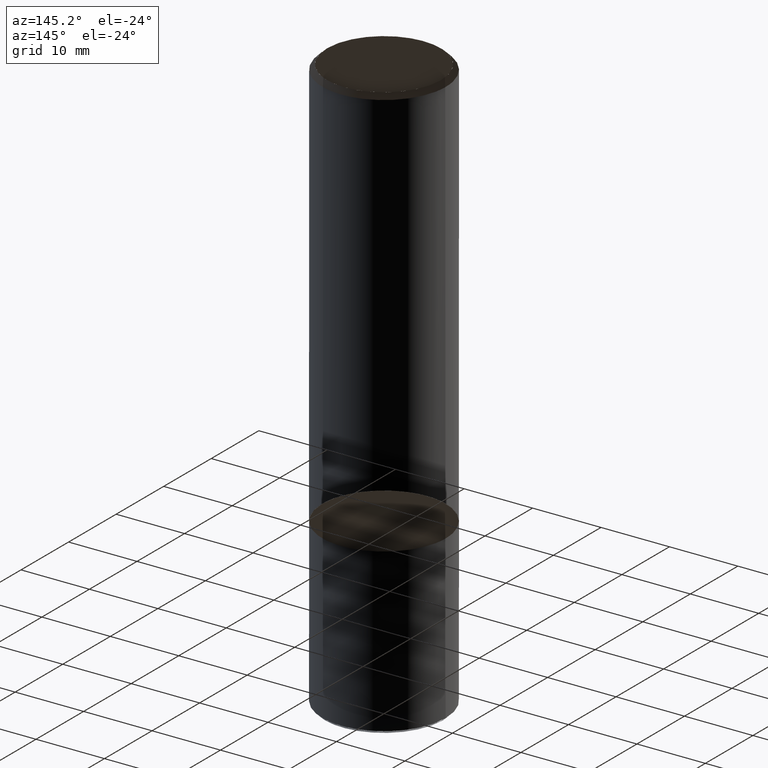
[diagram: clean part render]
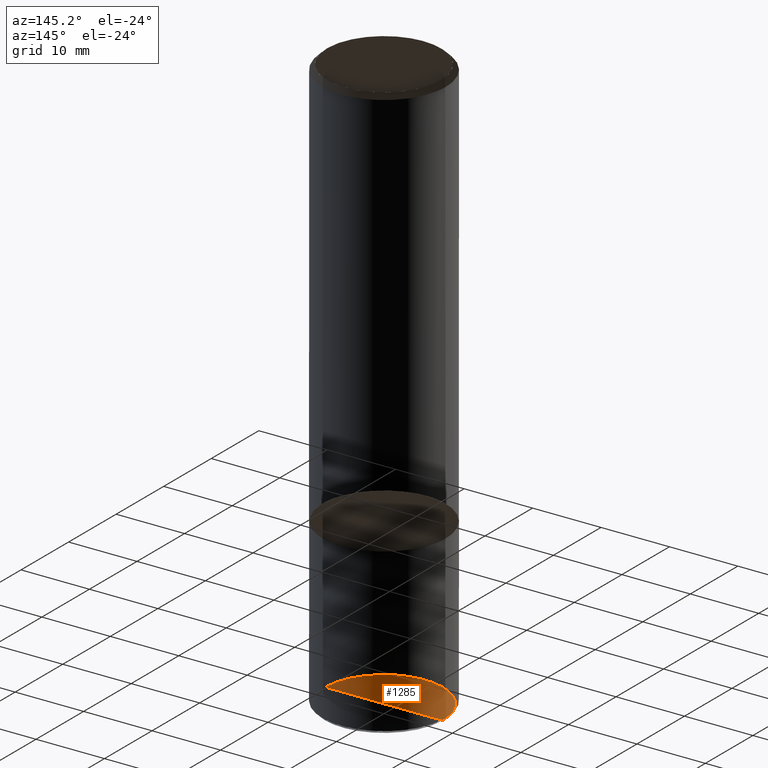
[diagram: same view with one face highlighted and labeled with its STEP entity id]
A machine part, auxiliary view. The second image highlights one B-rep face of the part: STEP entity #1285.
In plain terms, the highlighted face is a freeform B-spline surface patch.
Its self-contained STEP definition (entity closure, byte-faithful):
#1212=CARTESIAN_POINT('',(0.0,0.0,-24.001));
#1213=CARTESIAN_POINT('',(8.6,0.0,-24.001));
#1214=CARTESIAN_POINT('',(8.6,8.6,-24.001));
#1215=CARTESIAN_POINT('',(0.0,8.6,-24.001));
#1216=CARTESIAN_POINT('',(-8.6,8.6,-24.001));
#1217=CARTESIAN_POINT('',(-8.6,0.0,-24.001));
#1270=(
BOUNDED_SURFACE()
B_SPLINE_SURFACE(1,2,(
(#1212,#1212,#1212,#1212,#1212),
(#1213,#1214,#1215,#1216,#1217)
), .UNSPECIFIED.,.F.,.F.,.F.)
B_SPLINE_SURFACE_WITH_KNOTS((2,2),(3,2,3),(
0.0,1.0),(
0.0,0.5,1.0), .UNSPECIFIED.)
GEOMETRIC_REPRESENTATION_ITEM()
RATIONAL_B_SPLINE_SURFACE(((1.0,0.707106781187,1.0,0.707106781187,1.0),
(1.0,0.707106781187,1.0,0.707106781187,1.0)
))
REPRESENTATION_ITEM('')
SURFACE()
);
#1271=(
BOUNDED_CURVE()
B_SPLINE_CURVE(2,(#1213,#1214,#1215,#1216,#1217),.UNSPECIFIED.,.F.,.F.)
B_SPLINE_CURVE_WITH_KNOTS((3,2,3),
(0.0,0.5,1.0),.UNSPECIFIED.)
CURVE()
GEOMETRIC_REPRESENTATION_ITEM()
RATIONAL_B_SPLINE_CURVE((1.0,0.707106781187,1.0,0.707106781187,1.0))
REPRESENTATION_ITEM('')
);
#1272=(
BOUNDED_CURVE()
B_SPLINE_CURVE(1,(#1217,#1212),.UNSPECIFIED.,.F.,.F.)
B_SPLINE_CURVE_WITH_KNOTS((2,2),
(0.0,1.0),.UNSPECIFIED.)
CURVE()
GEOMETRIC_REPRESENTATION_ITEM()
RATIONAL_B_SPLINE_CURVE((1.0,1.0))
REPRESENTATION_ITEM('')
);
#1273=(
BOUNDED_CURVE()
B_SPLINE_CURVE(1,(#1212,#1213),.UNSPECIFIED.,.F.,.F.)
B_SPLINE_CURVE_WITH_KNOTS((2,2),
(0.0,1.0),.UNSPECIFIED.)
CURVE()
GEOMETRIC_REPRESENTATION_ITEM()
RATIONAL_B_SPLINE_CURVE((1.0,1.0))
REPRESENTATION_ITEM('')
);
#1274=VERTEX_POINT('',#1212);
#1275=VERTEX_POINT('',#1213);
#1276=VERTEX_POINT('',#1217);
#1277=EDGE_CURVE('',#1275,#1276,#1271,.T.);
#1278=EDGE_CURVE('',#1276,#1274,#1272,.T.);
#1279=EDGE_CURVE('',#1274,#1275,#1273,.T.);
#1280=ORIENTED_EDGE('',*,*,#1277,.T.);
#1281=ORIENTED_EDGE('',*,*,#1278,.T.);
#1282=ORIENTED_EDGE('',*,*,#1279,.T.);
#1283=EDGE_LOOP('',(#1280,#1281,#1282));
#1284=FACE_OUTER_BOUND('',#1283,.T.);
#1285=ADVANCED_FACE('',(#1284),#1270,.T.);